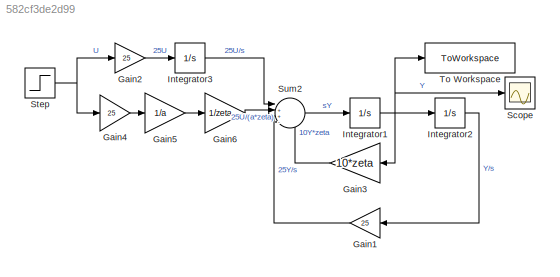
MODEL slx_582cf3de2d99
KIND model
CONFIG AbsTol = auto
CONFIG EnableMultiTasking = off
CONFIG FixedStep = auto
CONFIG MaxStep = 0.001
CONFIG MinStep = auto
CONFIG RelTol = 1e-3
CONFIG SampleTimeConstraint = Unconstrained
CONFIG SolverName = ode45
CONFIG StartTime = 0.0
CONFIG StopTime = 3
BLOCK [Gain] Gain1
  Gain = 25
BLOCK [Gain] Gain2
  Gain = 25
BLOCK [Gain] Gain3
  Gain = 10*zeta
BLOCK [Gain] Gain4
  Gain = 25
BLOCK [Gain] Gain5
  Gain = 1/a
BLOCK [Gain] Gain6
  Gain = 1/zeta
BLOCK [Integrator] Integrator1
  Ports = [1, 1]
BLOCK [Integrator] Integrator2
  Ports = [1, 1]
BLOCK [Integrator] Integrator3
  Ports = [1, 1]
BLOCK [Scope] Scope
  Floating = off
  NumInputPorts = 1
  Ports = [1]
  ScopeSpecificationString = Simulink.scopes.TimeScopeBlockCfg('CurrentConfiguration', extmgr.ConfigurationSet(extmgr.Configuration('Core','General UI',true),extmgr.Configuration('Core','Source UI',true),extmgr.Configuration('Sources','WiredSimulink',true),extmgr.Configuration('Visuals','Time Domain',true,'SerializedDisplays',{struct('MinYLimReal','-0.57372','MaxYLimReal','5.16346','YLabelReal','','MinYLimMag','0.00000','MaxY...<+1378ch>
BLOCK [Step] Step
  SampleTime = 0
  Time = 0
BLOCK [Sum] Sum2
  Inputs = |++--
  Ports = [4, 1]
BLOCK [ToWorkspace] To Workspace
  FixptAsFi = on
  MaxDataPoints = inf
  Ports = [1]
  SampleTime = -1
  VariableName = y
LINE Gain1:1 -> Sum2:3
LINE Gain2:1 -> Integrator3:1
LINE Gain3:1 -> Sum2:4
LINE Gain4:1 -> Gain5:1
LINE Gain5:1 -> Gain6:1
LINE Gain6:1 -> Sum2:2
NET Integrator1:1 -> Gain3:1, Integrator2:1, Scope:1, To Workspace:1
LINE Integrator2:1 -> Gain1:1
LINE Integrator3:1 -> Sum2:1
NET Step:1 -> Gain2:1, Gain4:1
LINE Sum2:1 -> Integrator1:1
note: NET lines group one-source signal fan-out (src -> all destinations, sorted); 1:1 wires keep LINE
